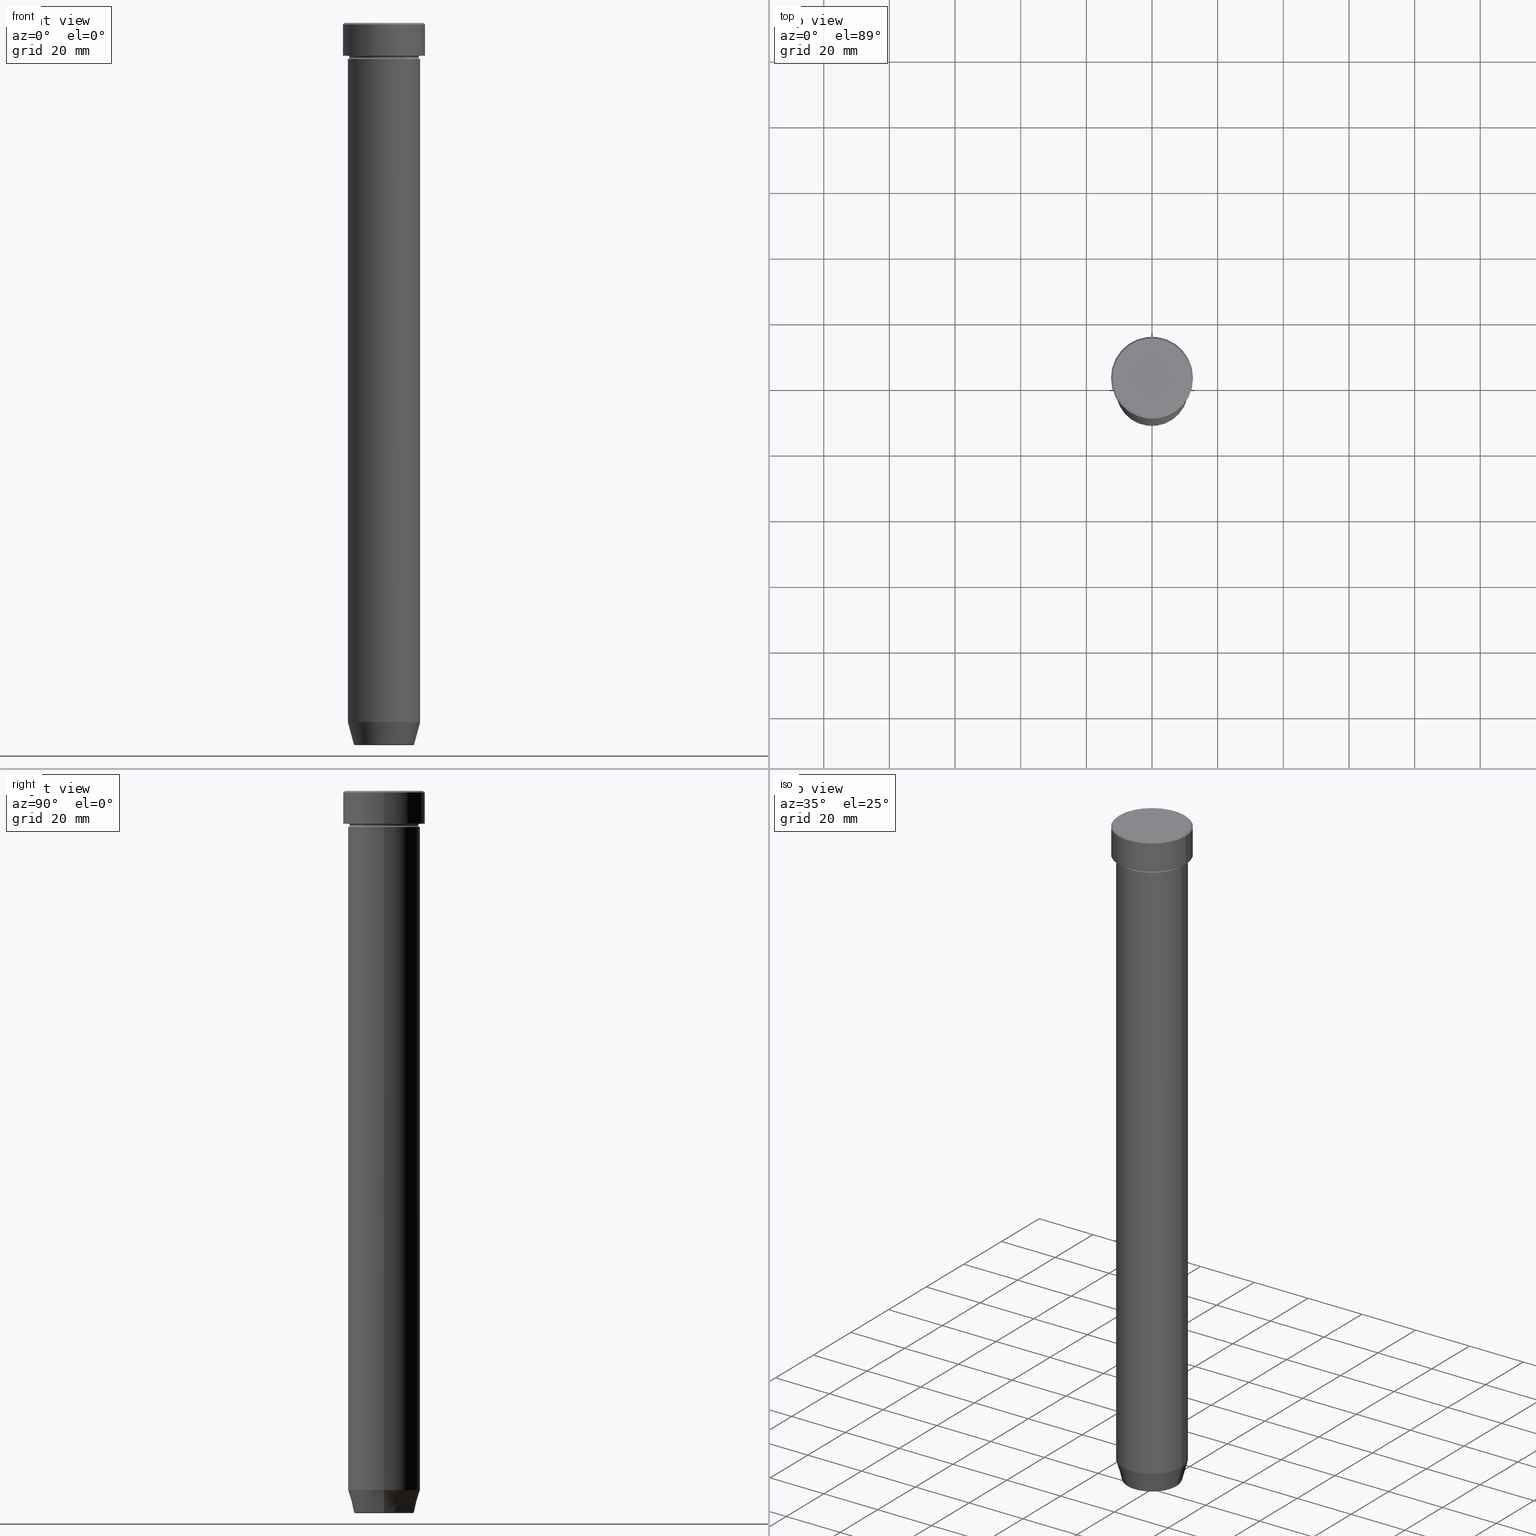
[diagram: canonical four-view strip — front | top / right | iso, engineering-drawing reading convention]
A machine part, canonical four-view strip (front | top / right | iso — engineering-drawing reading convention). The complete STEP part file that produces these views, byte-faithful:
ISO-10303-21;
HEADER;
FILE_DESCRIPTION (( 'STEP AP203' ),
    '1' );
FILE_NAME ('6da3.STEP',
    '2024-01-02T19:22:35',
    ( '' ),
    ( '' ),
    'SwSTEP 2.0',
    'SolidWorks 2019',
    '' );
FILE_SCHEMA (( 'CONFIG_CONTROL_DESIGN' ));
ENDSEC;

DATA;
#1 = CARTESIAN_POINT ( 'NONE',  ( -11.00000000000000000, 1.347111479062088405E-15, -10.49999999999999822 ) ) ;
#2 = SECURITY_CLASSIFICATION_LEVEL ( 'unclassified' ) ;
#3 = AXIS2_PLACEMENT_3D ( 'NONE', #478, #245, #189 ) ;
#4 = EDGE_CURVE ( 'NONE', #578, #142, #379, .T. ) ;
#5 = AXIS2_PLACEMENT_3D ( 'NONE', #418, #280, #504 ) ;
#6 = AXIS2_PLACEMENT_3D ( 'NONE', #106, #60, #186 ) ;
#7 = ORIENTED_EDGE ( 'NONE', *, *, #598, .F. ) ;
#8 = CARTESIAN_POINT ( 'NONE',  ( 0.000000000000000000, 0.000000000000000000, -11.00000000000000000 ) ) ;
#9 = EDGE_LOOP ( 'NONE', ( #497, #357 ) ) ;
#10 = FACE_OUTER_BOUND ( 'NONE', #376, .T. ) ;
#11 = VECTOR ( 'NONE', #35, 1000.000000000000000 ) ;
#12 = DIRECTION ( 'NONE',  ( 0.000000000000000000, 0.000000000000000000, -1.000000000000000000 ) ) ;
#13 = FACE_OUTER_BOUND ( 'NONE', #444, .T. ) ;
#14 = CARTESIAN_POINT ( 'NONE',  ( 0.000000000000000000, 0.000000000000000000, -10.50000000000000000 ) ) ;
#15 = DIRECTION ( 'NONE',  ( 1.000000000000000000, 0.000000000000000000, 0.000000000000000000 ) ) ;
#16 = VERTEX_POINT ( 'NONE', #528 ) ;
#17 = AXIS2_PLACEMENT_3D ( 'NONE', #14, #235, #530 ) ;
#18 = CARTESIAN_POINT ( 'NONE',  ( 0.000000000000000000, 0.000000000000000000, -10.49999999999999822 ) ) ;
#19 = DIRECTION ( 'NONE',  ( 1.000000000000000000, 0.000000000000000000, 0.000000000000000000 ) ) ;
#20 = ORIENTED_EDGE ( 'NONE', *, *, #591, .F. ) ;
#21 = FACE_OUTER_BOUND ( 'NONE', #268, .T. ) ;
#22 = DIRECTION ( 'NONE',  ( -0.000000000000000000, -0.000000000000000000, 1.000000000000000000 ) ) ;
#23 = ORIENTED_EDGE ( 'NONE', *, *, #385, .T. ) ;
#24 = CC_DESIGN_DATE_AND_TIME_ASSIGNMENT ( #455, #123, ( #493 ) ) ;
#25 = FACE_OUTER_BOUND ( 'NONE', #492, .T. ) ;
#26 = CARTESIAN_POINT ( 'NONE',  ( 12.00000000000000355, 1.469576158976824342E-15, 0.000000000000000000 ) ) ;
#27 = DIRECTION ( 'NONE',  ( 0.000000000000000000, 0.000000000000000000, -1.000000000000000000 ) ) ;
#28 = VERTEX_POINT ( 'NONE', #121 ) ;
#29 = AXIS2_PLACEMENT_3D ( 'NONE', #382, #146, #110 ) ;
#30 = CIRCLE ( 'NONE', #362, 12.50000000000000000 ) ;
#31 = CARTESIAN_POINT ( 'NONE',  ( -8.740692158992656502, 1.099999016768739653E-15, -220.0000000000000284 ) ) ;
#32 = CARTESIAN_POINT ( 'NONE',  ( 12.50000000000000000, 0.000000000000000000, 0.000000000000000000 ) ) ;
#33 = DIRECTION ( 'NONE',  ( 0.7071067811865462405, 8.659560562354918067E-17, -0.7071067811865489050 ) ) ;
#34 = CALENDAR_DATE ( 2024, 2, 1 ) ;
#35 = DIRECTION ( 'NONE',  ( 0.2588190451025213501, 0.000000000000000000, 0.9659258262890680902 ) ) ;
#36 = PRODUCT ( '6da3', '6da3', '', ( #255 ) ) ;
#37 = EDGE_LOOP ( 'NONE', ( #20, #132, #512, #43 ) ) ;
#38 = DIRECTION ( 'NONE',  ( -1.000000000000000000, 0.000000000000000000, 0.000000000000000000 ) ) ;
#39 = EDGE_LOOP ( 'NONE', ( #366, #396 ) ) ;
#40 = APPROVAL_DATE_TIME ( #489, #550 ) ;
#41 = EDGE_CURVE ( 'NONE', #256, #297, #483, .T. ) ;
#42 = VERTEX_POINT ( 'NONE', #31 ) ;
#43 = ORIENTED_EDGE ( 'NONE', *, *, #521, .F. ) ;
#44 = AXIS2_PLACEMENT_3D ( 'NONE', #116, #111, #399 ) ;
#45 = DIRECTION ( 'NONE',  ( 1.000000000000000000, 0.000000000000000000, 0.000000000000000000 ) ) ;
#46 = DIRECTION ( 'NONE',  ( -1.000000000000000000, 0.000000000000000000, 0.000000000000000000 ) ) ;
#47 = VERTEX_POINT ( 'NONE', #351 ) ;
#48 = DIRECTION ( 'NONE',  ( 1.000000000000000000, 0.000000000000000000, 0.000000000000000000 ) ) ;
#49 = COORDINATED_UNIVERSAL_TIME_OFFSET ( 1, 0, .AHEAD. ) ;
#50 = AXIS2_PLACEMENT_3D ( 'NONE', #429, #145, #109 ) ;
#51 = VERTEX_POINT ( 'NONE', #210 ) ;
#52 = DIRECTION ( 'NONE',  ( -0.000000000000000000, -0.000000000000000000, 1.000000000000000000 ) ) ;
#53 = VECTOR ( 'NONE', #369, 1000.000000000000000 ) ;
#54 = LOCAL_TIME ( 20, 22, 35.00000000000000000, #405 ) ;
#55 = EDGE_LOOP ( 'NONE', ( #337, #148, #556, #453 ) ) ;
#56 = EDGE_CURVE ( 'NONE', #256, #471, #352, .T. ) ;
#57 = DIRECTION ( 'NONE',  ( 1.000000000000000000, 0.000000000000000000, 0.000000000000000000 ) ) ;
#58 = EDGE_CURVE ( 'NONE', #304, #256, #112, .T. ) ;
#59 = DIRECTION ( 'NONE',  ( 1.000000000000000000, 0.000000000000000000, 0.000000000000000000 ) ) ;
#60 = DIRECTION ( 'NONE',  ( -0.000000000000000000, -0.000000000000000000, 1.000000000000000000 ) ) ;
#61 = ADVANCED_FACE ( 'NONE', ( #395 ), #177, .T. ) ;
#62 = EDGE_LOOP ( 'NONE', ( #216, #229, #184, #221 ) ) ;
#63 = CARTESIAN_POINT ( 'NONE',  ( -12.00000000000000355, 0.000000000000000000, 0.000000000000000000 ) ) ;
#64 = DIRECTION ( 'NONE',  ( -0.000000000000000000, -0.000000000000000000, 1.000000000000000000 ) ) ;
#65 = AXIS2_PLACEMENT_3D ( 'NONE', #1, #275, #135 ) ;
#66 = CARTESIAN_POINT ( 'NONE',  ( 0.000000000000000000, 0.000000000000000000, -10.00000000000000000 ) ) ;
#67 = DIRECTION ( 'NONE',  ( 1.224646799147353207E-16, 1.000000000000000000, 0.000000000000000000 ) ) ;
#68 = AXIS2_PLACEMENT_3D ( 'NONE', #386, #389, #568 ) ;
#69 = PLANE ( 'NONE',  #312 ) ;
#70 = VERTEX_POINT ( 'NONE', #155 ) ;
#71 = LINE ( 'NONE', #470, #597 ) ;
#72 = CARTESIAN_POINT ( 'NONE',  ( 0.000000000000000000, 0.000000000000000000, -219.6294095225512706 ) ) ;
#73 = DIRECTION ( 'NONE',  ( -0.7071067811865462405, 0.000000000000000000, -0.7071067811865489050 ) ) ;
#74 = VERTEX_POINT ( 'NONE', #387 ) ;
#75 = CARTESIAN_POINT ( 'NONE',  ( 0.000000000000000000, 0.000000000000000000, -219.5000000000000284 ) ) ;
#76 = FACE_OUTER_BOUND ( 'NONE', #287, .T. ) ;
#77 = CARTESIAN_POINT ( 'NONE',  ( -8.740692158992656502, 1.070426067484272519E-15, -219.5000000000000284 ) ) ;
#78 = CIRCLE ( 'NONE', #137, 12.00000000000000355 ) ;
#79 = CIRCLE ( 'NONE', #452, 9.223655072137189492 ) ;
#80 =( NAMED_UNIT ( * ) SI_UNIT ( $, .STERADIAN. ) SOLID_ANGLE_UNIT ( ) );
#81 = DIRECTION ( 'NONE',  ( 0.000000000000000000, 0.000000000000000000, -1.000000000000000000 ) ) ;
#82 = ORIENTED_EDGE ( 'NONE', *, *, #4, .F. ) ;
#83 = CIRCLE ( 'NONE', #425, 11.00000000000000000 ) ;
#84 = CIRCLE ( 'NONE', #342, 10.49999999999999822 ) ;
#85 = CC_DESIGN_APPROVAL ( #300, ( #355 ) ) ;
#86 = VERTEX_POINT ( 'NONE', #516 ) ;
#87 = ORIENTED_EDGE ( 'NONE', *, *, #202, .T. ) ;
#88 = ORIENTED_EDGE ( 'NONE', *, *, #561, .T. ) ;
#89 = DIRECTION ( 'NONE',  ( -0.000000000000000000, -0.000000000000000000, 1.000000000000000000 ) ) ;
#90 = DIRECTION ( 'NONE',  ( 0.000000000000000000, 0.000000000000000000, -1.000000000000000000 ) ) ;
#91 = PERSON_AND_ORGANIZATION ( #215, #576 ) ;
#92 = AXIS2_PLACEMENT_3D ( 'NONE', #583, #167, #435 ) ;
#93 = APPLICATION_PROTOCOL_DEFINITION ( 'international standard', 'config_control_design', 1994, #173 ) ;
#94 = AXIS2_PLACEMENT_3D ( 'NONE', #563, #394, #147 ) ;
#95 = LOCAL_TIME ( 20, 22, 35.00000000000000000, #307 ) ;
#96 = DIRECTION ( 'NONE',  ( 1.000000000000000000, 0.000000000000000000, 0.000000000000000000 ) ) ;
#97 = DIRECTION ( 'NONE',  ( -1.000000000000000000, -1.224646799147353454E-16, 0.000000000000000000 ) ) ;
#98 = EDGE_CURVE ( 'NONE', #42, #304, #368, .T. ) ;
#99 = ORIENTED_EDGE ( 'NONE', *, *, #407, .T. ) ;
#100 = CARTESIAN_POINT ( 'NONE',  ( 0.000000000000000000, 0.000000000000000000, -10.00000000000000000 ) ) ;
#101 = TOROIDAL_SURFACE ( 'NONE', #214, 11.00000000000000000, 0.5000000000000000000 ) ;
#102 = CARTESIAN_POINT ( 'NONE',  ( 0.000000000000000000, 0.000000000000000000, 0.000000000000000000 ) ) ;
#103 = DIRECTION ( 'NONE',  ( -1.000000000000000000, 0.000000000000000000, -0.000000000000000000 ) ) ;
#104 = DATE_AND_TIME ( #427, #228 ) ;
#105 = ADVANCED_FACE ( 'NONE', ( #559 ), #482, .T. ) ;
#106 = CARTESIAN_POINT ( 'NONE',  ( 0.000000000000000000, 0.000000000000000000, -10.49999999999999822 ) ) ;
#107 = DIRECTION ( 'NONE',  ( -0.000000000000000000, -0.000000000000000000, 1.000000000000000000 ) ) ;
#108 = ORIENTED_EDGE ( 'NONE', *, *, #409, .T. ) ;
#109 = DIRECTION ( 'NONE',  ( 0.000000000000000000, 0.000000000000000000, -1.000000000000000000 ) ) ;
#110 = DIRECTION ( 'NONE',  ( 1.000000000000000000, 0.000000000000000000, 0.000000000000000000 ) ) ;
#111 = DIRECTION ( 'NONE',  ( -0.000000000000000000, -0.000000000000000000, 1.000000000000000000 ) ) ;
#112 = CIRCLE ( 'NONE', #3, 0.5000000000000004441 ) ;
#113 = DIRECTION ( 'NONE',  ( -0.000000000000000000, -0.000000000000000000, 1.000000000000000000 ) ) ;
#114 = DIRECTION ( 'NONE',  ( -1.224646799147353207E-16, 1.000000000000000000, 0.000000000000000000 ) ) ;
#115 = APPROVAL_PERSON_ORGANIZATION ( #499, #170, #340 ) ;
#116 = CARTESIAN_POINT ( 'NONE',  ( 0.000000000000000000, 0.000000000000000000, 0.000000000000000000 ) ) ;
#117 = LINE ( 'NONE', #26, #140 ) ;
#118 = ORIENTED_EDGE ( 'NONE', *, *, #291, .T. ) ;
#119 = CARTESIAN_POINT ( 'NONE',  ( -11.00000000000000000, 1.347111479062088405E-15, -213.0000000000000284 ) ) ;
#120 = CARTESIAN_POINT ( 'NONE',  ( 0.000000000000000000, 0.000000000000000000, -213.0000000000000284 ) ) ;
#121 = CARTESIAN_POINT ( 'NONE',  ( 11.00000000000000000, 0.000000000000000000, -27.00000000000000000 ) ) ;
#122 = VECTOR ( 'NONE', #336, 1000.000000000000000 ) ;
#123 = DATE_TIME_ROLE ( 'creation_date' ) ;
#124 = EDGE_LOOP ( 'NONE', ( #551, #23, #539, #138 ) ) ;
#125 = CARTESIAN_POINT ( 'NONE',  ( 0.000000000000000000, 0.000000000000000000, 0.000000000000000000 ) ) ;
#126 = DIRECTION ( 'NONE',  ( -1.000000000000000000, 0.000000000000000000, -0.000000000000000000 ) ) ;
#127 = ORIENTED_EDGE ( 'NONE', *, *, #309, .F. ) ;
#128 = CARTESIAN_POINT ( 'NONE',  ( 0.000000000000000000, 0.000000000000000000, -27.00000000000000000 ) ) ;
#129 = CONICAL_SURFACE ( 'NONE', #166, 9.124355652982133691, 0.2617993877991500740 ) ;
#130 = DIRECTION ( 'NONE',  ( -0.000000000000000000, -0.000000000000000000, 1.000000000000000000 ) ) ;
#131 = APPROVAL_STATUS ( 'not_yet_approved' ) ;
#132 = ORIENTED_EDGE ( 'NONE', *, *, #536, .T. ) ;
#133 = DIRECTION ( 'NONE',  ( 0.000000000000000000, 0.000000000000000000, 1.000000000000000000 ) ) ;
#134 = EDGE_LOOP ( 'NONE', ( #454, #87, #515, #503 ) ) ;
#135 = DIRECTION ( 'NONE',  ( -1.000000000000000000, 1.224646799147353454E-16, 0.000000000000000000 ) ) ;
#136 = DATE_AND_TIME ( #370, #426 ) ;
#137 = AXIS2_PLACEMENT_3D ( 'NONE', #102, #288, #96 ) ;
#138 = ORIENTED_EDGE ( 'NONE', *, *, #139, .F. ) ;
#139 = EDGE_CURVE ( 'NONE', #507, #284, #431, .T. ) ;
#140 = VECTOR ( 'NONE', #33, 999.9999999999998863 ) ;
#141 = LINE ( 'NONE', #299, #122 ) ;
#142 = VERTEX_POINT ( 'NONE', #289 ) ;
#143 = CYLINDRICAL_SURFACE ( 'NONE', #464, 11.00000000000000000 ) ;
#144 = DIRECTION ( 'NONE',  ( 1.000000000000000000, 0.000000000000000000, 0.000000000000000000 ) ) ;
#145 = DIRECTION ( 'NONE',  ( 0.000000000000000000, -1.000000000000000000, 0.000000000000000000 ) ) ;
#146 = DIRECTION ( 'NONE',  ( -0.000000000000000000, -0.000000000000000000, 1.000000000000000000 ) ) ;
#147 = DIRECTION ( 'NONE',  ( -1.000000000000000000, 0.000000000000000000, 0.000000000000000000 ) ) ;
#148 = ORIENTED_EDGE ( 'NONE', *, *, #536, .F. ) ;
#149 = CARTESIAN_POINT ( 'NONE',  ( 11.00000000000000000, 0.000000000000000000, -27.00000000000000000 ) ) ;
#150 = LINE ( 'NONE', #481, #524 ) ;
#151 = ORIENTED_EDGE ( 'NONE', *, *, #163, .F. ) ;
#152 = CARTESIAN_POINT ( 'NONE',  ( -10.49999999999999822, 1.316495309083404420E-15, -10.49999999999999822 ) ) ;
#153 = CARTESIAN_POINT ( 'NONE',  ( 11.00000000000000000, 0.000000000000000000, -213.0000000000000284 ) ) ;
#154 = AXIS2_PLACEMENT_3D ( 'NONE', #77, #67, #199 ) ;
#155 = CARTESIAN_POINT ( 'NONE',  ( -11.00000000000000000, 1.347111479062088405E-15, -27.00000000000000000 ) ) ;
#156 = SECURITY_CLASSIFICATION ( '', '', #2 ) ;
#157 = ADVANCED_FACE ( 'NONE', ( #461 ), #161, .T. ) ;
#158 = FACE_OUTER_BOUND ( 'NONE', #62, .T. ) ;
#159 = ORIENTED_EDGE ( 'NONE', *, *, #417, .F. ) ;
#160 = APPROVAL_DATE_TIME ( #259, #300 ) ;
#161 = TOROIDAL_SURFACE ( 'NONE', #234, 8.740692158992656502, 0.5000000000000000000 ) ;
#162 = FACE_OUTER_BOUND ( 'NONE', #372, .T. ) ;
#163 = EDGE_CURVE ( 'NONE', #284, #416, #212, .T. ) ;
#164 = ADVANCED_FACE ( 'NONE', ( #181, #377 ), #232, .T. ) ;
#165 = VERTEX_POINT ( 'NONE', #119 ) ;
#166 = AXIS2_PLACEMENT_3D ( 'NONE', #573, #286, #19 ) ;
#167 = DIRECTION ( 'NONE',  ( -0.000000000000000000, -0.000000000000000000, 1.000000000000000000 ) ) ;
#168 = ORIENTED_EDGE ( 'NONE', *, *, #356, .T. ) ;
#169 = DIRECTION ( 'NONE',  ( -0.000000000000000000, -0.000000000000000000, 1.000000000000000000 ) ) ;
#170 = APPROVAL ( #599, 'NEUR�EN�' ) ;
#171 = ADVANCED_BREP_SHAPE_REPRESENTATION ( '6da3', ( #397, #393, #541 ), #332 ) ;
#172 = PERSON_AND_ORGANIZATION_ROLE ( 'classification_officer' ) ;
#173 = APPLICATION_CONTEXT ( 'configuration controlled 3d designs of mechanical parts and assemblies' ) ;
#174 = CC_DESIGN_PERSON_AND_ORGANIZATION_ASSIGNMENT ( #414, #419, ( #355 ) ) ;
#175 = CARTESIAN_POINT ( 'NONE',  ( 0.000000000000000000, 0.000000000000000000, -10.49999999999999822 ) ) ;
#176 = PERSON_AND_ORGANIZATION ( #215, #576 ) ;
#177 = CONICAL_SURFACE ( 'NONE', #233, 12.00000000000000355, 0.7853981633974465026 ) ;
#178 = ADVANCED_FACE ( 'NONE', ( #10 ), #473, .T. ) ;
#179 = AXIS2_PLACEMENT_3D ( 'NONE', #346, #107, #15 ) ;
#180 = TOROIDAL_SURFACE ( 'NONE', #263, 8.740692158992656502, 0.5000000000000000000 ) ;
#181 = FACE_BOUND ( 'NONE', #9, .T. ) ;
#182 = DIRECTION ( 'NONE',  ( 1.000000000000000000, 0.000000000000000000, 0.000000000000000000 ) ) ;
#183 = SHAPE_DEFINITION_REPRESENTATION ( #264, #171 ) ;
#184 = ORIENTED_EDGE ( 'NONE', *, *, #58, .T. ) ;
#185 = CONICAL_SURFACE ( 'NONE', #595, 12.00000000000000355, 0.7853981633974465026 ) ;
#186 = DIRECTION ( 'NONE',  ( 1.000000000000000000, 0.000000000000000000, 0.000000000000000000 ) ) ;
#187 = AXIS2_PLACEMENT_3D ( 'NONE', #519, #114, #97 ) ;
#188 = VERTEX_POINT ( 'NONE', #63 ) ;
#189 = DIRECTION ( 'NONE',  ( 0.000000000000000000, 0.000000000000000000, -1.000000000000000000 ) ) ;
#190 = DIRECTION ( 'NONE',  ( -0.000000000000000000, -0.000000000000000000, 1.000000000000000000 ) ) ;
#191 = EDGE_CURVE ( 'NONE', #16, #416, #236, .T. ) ;
#192 = DIRECTION ( 'NONE',  ( 1.000000000000000000, 0.000000000000000000, 0.000000000000000000 ) ) ;
#193 = CARTESIAN_POINT ( 'NONE',  ( 0.000000000000000000, 2.081899558550500990E-14, -220.0000000000000284 ) ) ;
#194 = ORIENTED_EDGE ( 'NONE', *, *, #500, .F. ) ;
#195 = CARTESIAN_POINT ( 'NONE',  ( 0.000000000000000000, 0.000000000000000000, -10.50000000000000000 ) ) ;
#196 = DIRECTION ( 'NONE',  ( -0.000000000000000000, -0.000000000000000000, 1.000000000000000000 ) ) ;
#197 = CARTESIAN_POINT ( 'NONE',  ( -12.50000000000000000, 1.530808498934191521E-15, -0.4999999999999988343 ) ) ;
#198 = ADVANCED_FACE ( 'NONE', ( #257 ), #302, .T. ) ;
#199 = DIRECTION ( 'NONE',  ( -1.000000000000000000, 1.224646799147353454E-16, 0.000000000000000000 ) ) ;
#200 = ORIENTED_EDGE ( 'NONE', *, *, #409, .F. ) ;
#201 = DIRECTION ( 'NONE',  ( -0.000000000000000000, -0.000000000000000000, 1.000000000000000000 ) ) ;
#202 = EDGE_CURVE ( 'NONE', #42, #471, #398, .T. ) ;
#203 = AXIS2_PLACEMENT_3D ( 'NONE', #341, #201, #238 ) ;
#204 = ORIENTED_EDGE ( 'NONE', *, *, #334, .F. ) ;
#205 = DIRECTION ( 'NONE',  ( 1.000000000000000000, 0.000000000000000000, 0.000000000000000000 ) ) ;
#206 = DIRECTION ( 'NONE',  ( -0.000000000000000000, -0.000000000000000000, 1.000000000000000000 ) ) ;
#207 = DIRECTION ( 'NONE',  ( 1.000000000000000000, 0.000000000000000000, 0.000000000000000000 ) ) ;
#208 = EDGE_LOOP ( 'NONE', ( #544, #219, #247, #596 ) ) ;
#209 =( NAMED_UNIT ( * ) PLANE_ANGLE_UNIT ( ) SI_UNIT ( $, .RADIAN. ) );
#210 = CARTESIAN_POINT ( 'NONE',  ( 12.00000000000000355, 1.500192328955507734E-15, 0.000000000000000000 ) ) ;
#211 = PRODUCT_RELATED_PRODUCT_CATEGORY ( 'detail', '', ( #36 ) ) ;
#212 = CIRCLE ( 'NONE', #411, 11.00000000000000000 ) ;
#213 = ORIENTED_EDGE ( 'NONE', *, *, #591, .T. ) ;
#214 = AXIS2_PLACEMENT_3D ( 'NONE', #195, #316, #38 ) ;
#215 = PERSON ( 'NEUR�EN�', 'NEUR�EN�', 'NEUR�EN�', ('NEUR�EN�'), ('NEUR�EN�'), ('NEUR�EN�') ) ;
#216 = ORIENTED_EDGE ( 'NONE', *, *, #202, .F. ) ;
#217 = ADVANCED_FACE ( 'NONE', ( #21 ), #252, .T. ) ;
#218 = CALENDAR_DATE ( 2024, 2, 1 ) ;
#219 = ORIENTED_EDGE ( 'NONE', *, *, #500, .T. ) ;
#220 = COORDINATED_UNIVERSAL_TIME_OFFSET ( 1, 0, .AHEAD. ) ;
#221 = ORIENTED_EDGE ( 'NONE', *, *, #545, .F. ) ;
#222 = APPROVAL_ROLE ( '' ) ;
#223 = EDGE_CURVE ( 'NONE', #513, #86, #501, .T. ) ;
#224 = ORIENTED_EDGE ( 'NONE', *, *, #353, .T. ) ;
#225 = PERSON_AND_ORGANIZATION_ROLE ( 'creator' ) ;
#226 = CIRCLE ( 'NONE', #374, 12.50000000000000000 ) ;
#227 = CC_DESIGN_PERSON_AND_ORGANIZATION_ASSIGNMENT ( #91, #225, ( #493 ) ) ;
#228 = LOCAL_TIME ( 20, 22, 35.00000000000000000, #388 ) ;
#229 = ORIENTED_EDGE ( 'NONE', *, *, #353, .F. ) ;
#230 = ORIENTED_EDGE ( 'NONE', *, *, #308, .T. ) ;
#231 = CARTESIAN_POINT ( 'NONE',  ( 0.000000000000000000, 0.000000000000000000, 0.000000000000000000 ) ) ;
#232 = PLANE ( 'NONE',  #487 ) ;
#233 = AXIS2_PLACEMENT_3D ( 'NONE', #380, #27, #574 ) ;
#234 = AXIS2_PLACEMENT_3D ( 'NONE', #274, #52, #468 ) ;
#235 = DIRECTION ( 'NONE',  ( 0.000000000000000000, 0.000000000000000000, -1.000000000000000000 ) ) ;
#236 = LINE ( 'NONE', #518, #303 ) ;
#237 = AXIS2_PLACEMENT_3D ( 'NONE', #100, #466, #46 ) ;
#238 = DIRECTION ( 'NONE',  ( 1.000000000000000000, 0.000000000000000000, 0.000000000000000000 ) ) ;
#239 = APPROVAL_PERSON_ORGANIZATION ( #581, #550, #222 ) ;
#240 = ORIENTED_EDGE ( 'NONE', *, *, #291, .F. ) ;
#241 = EDGE_LOOP ( 'NONE', ( #582, #118 ) ) ;
#242 = ADVANCED_FACE ( 'NONE', ( #490 ), #101, .F. ) ;
#243 = LINE ( 'NONE', #32, #525 ) ;
#244 = PLANE ( 'NONE',  #585 ) ;
#245 = DIRECTION ( 'NONE',  ( 0.000000000000000000, -1.000000000000000000, 0.000000000000000000 ) ) ;
#246 = DIRECTION ( 'NONE',  ( 0.000000000000000000, 0.000000000000000000, -1.000000000000000000 ) ) ;
#247 = ORIENTED_EDGE ( 'NONE', *, *, #309, .T. ) ;
#248 = LINE ( 'NONE', #443, #540 ) ;
#249 = DIRECTION ( 'NONE',  ( -0.000000000000000000, -0.000000000000000000, 1.000000000000000000 ) ) ;
#250 = DIRECTION ( 'NONE',  ( 1.000000000000000000, 0.000000000000000000, 0.000000000000000000 ) ) ;
#251 = EDGE_LOOP ( 'NONE', ( #459, #402, #320, #194 ) ) ;
#252 = CONICAL_SURFACE ( 'NONE', #558, 9.124355652982133691, 0.2617993877991500740 ) ;
#253 = EDGE_CURVE ( 'NONE', #47, #74, #226, .T. ) ;
#254 = EDGE_CURVE ( 'NONE', #16, #587, #549, .T. ) ;
#255 = MECHANICAL_CONTEXT ( 'NONE', #173, 'mechanical' ) ;
#256 = VERTEX_POINT ( 'NONE', #557 ) ;
#257 = FACE_OUTER_BOUND ( 'NONE', #327, .T. ) ;
#258 = CARTESIAN_POINT ( 'NONE',  ( 9.124355652982133691, 0.000000000000000000, -220.0000000000000284 ) ) ;
#259 = DATE_AND_TIME ( #218, #95 ) ;
#260 = EDGE_CURVE ( 'NONE', #188, #51, #78, .T. ) ;
#261 = CIRCLE ( 'NONE', #5, 11.00000000000000000 ) ;
#262 = APPLICATION_CONTEXT ( 'configuration controlled 3d designs of mechanical parts and assemblies' ) ;
#263 = AXIS2_PLACEMENT_3D ( 'NONE', #75, #447, #474 ) ;
#264 = PRODUCT_DEFINITION_SHAPE ( 'NONE', 'NONE',  #493 ) ;
#265 = DIRECTION ( 'NONE',  ( 1.000000000000000000, 0.000000000000000000, 0.000000000000000000 ) ) ;
#266 = EDGE_LOOP ( 'NONE', ( #542, #213, #204, #82 ) ) ;
#267 = ADVANCED_FACE ( 'NONE', ( #552 ), #143, .T. ) ;
#268 = EDGE_LOOP ( 'NONE', ( #590, #360, #296, #554 ) ) ;
#269 = ADVANCED_FACE ( 'NONE', ( #438 ), #129, .T. ) ;
#270 = TOROIDAL_SURFACE ( 'NONE', #17, 11.00000000000000000, 0.5000000000000000000 ) ;
#271 = CIRCLE ( 'NONE', #187, 0.5000000000000004441 ) ;
#272 = APPLICATION_PROTOCOL_DEFINITION ( 'international standard', 'config_control_design', 1994, #262 ) ;
#273 = CARTESIAN_POINT ( 'NONE',  ( 0.000000000000000000, 0.000000000000000000, 0.000000000000000000 ) ) ;
#274 = CARTESIAN_POINT ( 'NONE',  ( 0.000000000000000000, 0.000000000000000000, -219.5000000000000284 ) ) ;
#275 = DIRECTION ( 'NONE',  ( 1.224646799147353207E-16, 1.000000000000000000, 0.000000000000000000 ) ) ;
#276 = ADVANCED_FACE ( 'NONE', ( #76 ), #244, .F. ) ;
#277 = DIRECTION ( 'NONE',  ( -1.000000000000000000, 0.000000000000000000, 0.000000000000000000 ) ) ;
#278 = ORIENTED_EDGE ( 'NONE', *, *, #223, .F. ) ;
#279 = CARTESIAN_POINT ( 'NONE',  ( 0.000000000000000000, 0.000000000000000000, -213.0000000000000284 ) ) ;
#280 = DIRECTION ( 'NONE',  ( -0.000000000000000000, -0.000000000000000000, 1.000000000000000000 ) ) ;
#281 = CIRCLE ( 'NONE', #203, 11.00000000000000000 ) ;
#282 = EDGE_LOOP ( 'NONE', ( #350, #448, #537, #509 ) ) ;
#283 = CARTESIAN_POINT ( 'NONE',  ( 11.00000000000000000, 1.347111479062088405E-15, -10.00000000000000000 ) ) ;
#284 = VERTEX_POINT ( 'NONE', #390 ) ;
#285 = CYLINDRICAL_SURFACE ( 'NONE', #412, 11.00000000000000000 ) ;
#286 = DIRECTION ( 'NONE',  ( -0.000000000000000000, -0.000000000000000000, 1.000000000000000000 ) ) ;
#287 = EDGE_LOOP ( 'NONE', ( #224, #479 ) ) ;
#288 = DIRECTION ( 'NONE',  ( -0.000000000000000000, -0.000000000000000000, 1.000000000000000000 ) ) ;
#289 = CARTESIAN_POINT ( 'NONE',  ( -11.00000000000000000, 0.000000000000000000, -10.00000000000000000 ) ) ;
#290 = EDGE_CURVE ( 'NONE', #51, #86, #117, .T. ) ;
#291 = EDGE_CURVE ( 'NONE', #51, #188, #456, .T. ) ;
#292 = EDGE_CURVE ( 'NONE', #587, #284, #141, .T. ) ;
#293 = FACE_OUTER_BOUND ( 'NONE', #564, .T. ) ;
#294 = AXIS2_PLACEMENT_3D ( 'NONE', #594, #365, #589 ) ;
#295 = DIRECTION ( 'NONE',  ( 1.000000000000000000, 0.000000000000000000, 0.000000000000000000 ) ) ;
#296 = ORIENTED_EDGE ( 'NONE', *, *, #329, .F. ) ;
#297 = VERTEX_POINT ( 'NONE', #153 ) ;
#298 = DIRECTION ( 'NONE',  ( -0.000000000000000000, -0.000000000000000000, 1.000000000000000000 ) ) ;
#299 = CARTESIAN_POINT ( 'NONE',  ( 11.00000000000000000, 0.000000000000000000, 0.000000000000000000 ) ) ;
#300 = APPROVAL ( #131, 'NEUR�EN�' ) ;
#301 = CARTESIAN_POINT ( 'NONE',  ( 0.000000000000000000, 0.000000000000000000, -10.49999999999999822 ) ) ;
#302 = PLANE ( 'NONE',  #534 ) ;
#303 = VECTOR ( 'NONE', #423, 1000.000000000000000 ) ;
#304 = VERTEX_POINT ( 'NONE', #511 ) ;
#305 = CIRCLE ( 'NONE', #383, 11.00000000000000000 ) ;
#306 = EDGE_CURVE ( 'NONE', #74, #47, #451, .T. ) ;
#307 = COORDINATED_UNIVERSAL_TIME_OFFSET ( 1, 0, .AHEAD. ) ;
#308 = EDGE_CURVE ( 'NONE', #188, #513, #150, .T. ) ;
#309 = EDGE_CURVE ( 'NONE', #297, #28, #248, .T. ) ;
#310 = VERTEX_POINT ( 'NONE', #283 ) ;
#311 = DIRECTION ( 'NONE',  ( 1.000000000000000000, 0.000000000000000000, 0.000000000000000000 ) ) ;
#312 = AXIS2_PLACEMENT_3D ( 'NONE', #392, #246, #477 ) ;
#313 = AXIS2_PLACEMENT_3D ( 'NONE', #301, #298, #480 ) ;
#314 = CC_DESIGN_DATE_AND_TIME_ASSIGNMENT ( #136, #543, ( #156 ) ) ;
#315 = ORIENTED_EDGE ( 'NONE', *, *, #538, .F. ) ;
#316 = DIRECTION ( 'NONE',  ( 0.000000000000000000, 0.000000000000000000, -1.000000000000000000 ) ) ;
#317 = ADVANCED_FACE ( 'NONE', ( #13 ), #523, .T. ) ;
#318 = CALENDAR_DATE ( 2024, 2, 1 ) ;
#319 = ADVANCED_FACE ( 'NONE', ( #293 ), #69, .F. ) ;
#320 = ORIENTED_EDGE ( 'NONE', *, *, #41, .T. ) ;
#321 =( LENGTH_UNIT ( ) NAMED_UNIT ( * ) SI_UNIT ( .MILLI., .METRE. ) );
#322 = DIRECTION ( 'NONE',  ( 0.000000000000000000, -0.000000000000000000, 1.000000000000000000 ) ) ;
#323 = AXIS2_PLACEMENT_3D ( 'NONE', #326, #90, #325 ) ;
#324 = CARTESIAN_POINT ( 'NONE',  ( 0.000000000000000000, 0.000000000000000000, 0.000000000000000000 ) ) ;
#325 = DIRECTION ( 'NONE',  ( 1.000000000000000000, 0.000000000000000000, 0.000000000000000000 ) ) ;
#326 = CARTESIAN_POINT ( 'NONE',  ( 0.000000000000000000, 0.000000000000000000, -220.0000000000000284 ) ) ;
#327 = EDGE_LOOP ( 'NONE', ( #200, #505 ) ) ;
#328 = CARTESIAN_POINT ( 'NONE',  ( -11.00000000000000000, 1.347111479062088405E-15, 0.000000000000000000 ) ) ;
#329 = EDGE_CURVE ( 'NONE', #297, #165, #445, .T. ) ;
#330 = DIRECTION ( 'NONE',  ( 0.000000000000000000, 0.000000000000000000, -1.000000000000000000 ) ) ;
#331 = PLANE ( 'NONE',  #408 ) ;
#332 =( GEOMETRIC_REPRESENTATION_CONTEXT ( 3 ) GLOBAL_UNCERTAINTY_ASSIGNED_CONTEXT ( ( #391 ) ) GLOBAL_UNIT_ASSIGNED_CONTEXT ( ( #321, #209, #80 ) ) REPRESENTATION_CONTEXT ( 'NONE', 'WORKASPACE' ) );
#333 = DIRECTION ( 'NONE',  ( -0.000000000000000000, -0.000000000000000000, 1.000000000000000000 ) ) ;
#334 = EDGE_CURVE ( 'NONE', #142, #310, #575, .T. ) ;
#335 = FACE_OUTER_BOUND ( 'NONE', #124, .T. ) ;
#336 = DIRECTION ( 'NONE',  ( -0.000000000000000000, -0.000000000000000000, 1.000000000000000000 ) ) ;
#337 = ORIENTED_EDGE ( 'NONE', *, *, #385, .F. ) ;
#338 = DIRECTION ( 'NONE',  ( -0.2588190451025213501, 3.169619151431772337E-17, 0.9659258262890680902 ) ) ;
#339 = ADVANCED_FACE ( 'NONE', ( #371 ), #331, .T. ) ;
#340 = APPROVAL_ROLE ( '' ) ;
#341 = CARTESIAN_POINT ( 'NONE',  ( 0.000000000000000000, 0.000000000000000000, -27.00000000000000000 ) ) ;
#342 = AXIS2_PLACEMENT_3D ( 'NONE', #175, #130, #462 ) ;
#343 = CIRCLE ( 'NONE', #65, 0.5000000000000004441 ) ;
#344 = CARTESIAN_POINT ( 'NONE',  ( -12.50000000000000000, 1.530808498934191521E-15, 0.000000000000000000 ) ) ;
#345 = LOCAL_TIME ( 20, 22, 35.00000000000000000, #49 ) ;
#346 = CARTESIAN_POINT ( 'NONE',  ( 0.000000000000000000, 0.000000000000000000, -10.00000000000000000 ) ) ;
#347 = DIRECTION ( 'NONE',  ( 1.000000000000000000, 0.000000000000000000, 0.000000000000000000 ) ) ;
#348 = CARTESIAN_POINT ( 'NONE',  ( 10.49999999999999822, 0.000000000000000000, -10.49999999999999822 ) ) ;
#349 = CARTESIAN_POINT ( 'NONE',  ( 0.000000000000000000, 0.000000000000000000, -220.0000000000000284 ) ) ;
#350 = ORIENTED_EDGE ( 'NONE', *, *, #191, .F. ) ;
#351 = CARTESIAN_POINT ( 'NONE',  ( -12.50000000000000000, 1.530808498934191521E-15, -10.00000000000000000 ) ) ;
#352 = CIRCLE ( 'NONE', #92, 9.223655072137189492 ) ;
#353 = EDGE_CURVE ( 'NONE', #304, #42, #475, .T. ) ;
#354 = CIRCLE ( 'NONE', #94, 11.00000000000000000 ) ;
#355 = PRODUCT_DEFINITION_FORMATION_WITH_SPECIFIED_SOURCE ( 'LIBOVOLN�', '', #36, .NOT_KNOWN. ) ;
#356 = EDGE_CURVE ( 'NONE', #70, #28, #261, .T. ) ;
#357 = ORIENTED_EDGE ( 'NONE', *, *, #521, .T. ) ;
#358 = CARTESIAN_POINT ( 'NONE',  ( -11.00000000000000000, 0.000000000000000000, -10.50000000000000000 ) ) ;
#359 = ORIENTED_EDGE ( 'NONE', *, *, #290, .F. ) ;
#360 = ORIENTED_EDGE ( 'NONE', *, *, #546, .T. ) ;
#361 = AXIS2_PLACEMENT_3D ( 'NONE', #128, #89, #311 ) ;
#362 = AXIS2_PLACEMENT_3D ( 'NONE', #502, #548, #367 ) ;
#363 = CARTESIAN_POINT ( 'NONE',  ( -11.00000000000000000, 1.347111479062088405E-15, -11.00000000000000000 ) ) ;
#364 = APPROVAL_ROLE ( '' ) ;
#365 = DIRECTION ( 'NONE',  ( 0.000000000000000000, 0.000000000000000000, -1.000000000000000000 ) ) ;
#366 = ORIENTED_EDGE ( 'NONE', *, *, #306, .F. ) ;
#367 = DIRECTION ( 'NONE',  ( 1.000000000000000000, 0.000000000000000000, 0.000000000000000000 ) ) ;
#368 = CIRCLE ( 'NONE', #450, 8.740692158992656502 ) ;
#369 = DIRECTION ( 'NONE',  ( -0.000000000000000000, -0.000000000000000000, 1.000000000000000000 ) ) ;
#370 = CALENDAR_DATE ( 2024, 2, 1 ) ;
#371 = FACE_OUTER_BOUND ( 'NONE', #241, .T. ) ;
#372 = EDGE_LOOP ( 'NONE', ( #240, #562, #278, #577 ) ) ;
#373 = CC_DESIGN_PERSON_AND_ORGANIZATION_ASSIGNMENT ( #176, #410, ( #355 ) ) ;
#374 = AXIS2_PLACEMENT_3D ( 'NONE', #66, #169, #498 ) ;
#375 = CC_DESIGN_SECURITY_CLASSIFICATION ( #156, ( #355 ) ) ;
#376 = EDGE_LOOP ( 'NONE', ( #485, #99, #159, #127 ) ) ;
#377 = FACE_OUTER_BOUND ( 'NONE', #39, .T. ) ;
#378 = CARTESIAN_POINT ( 'NONE',  ( 0.000000000000000000, 12.50000000000000000, -10.00000000000000000 ) ) ;
#379 = CIRCLE ( 'NONE', #532, 0.5000000000000004441 ) ;
#380 = CARTESIAN_POINT ( 'NONE',  ( 0.000000000000000000, 0.000000000000000000, 0.000000000000000000 ) ) ;
#381 = AXIS2_PLACEMENT_3D ( 'NONE', #231, #333, #59 ) ;
#382 = CARTESIAN_POINT ( 'NONE',  ( 0.000000000000000000, 0.000000000000000000, 0.000000000000000000 ) ) ;
#383 = AXIS2_PLACEMENT_3D ( 'NONE', #120, #22, #295 ) ;
#384 = APPROVAL_PERSON_ORGANIZATION ( #491, #300, #364 ) ;
#385 = EDGE_CURVE ( 'NONE', #578, #416, #343, .T. ) ;
#386 = CARTESIAN_POINT ( 'NONE',  ( 0.000000000000000000, 0.000000000000000000, -11.00000000000000000 ) ) ;
#387 = CARTESIAN_POINT ( 'NONE',  ( 12.50000000000000000, 0.000000000000000000, -10.00000000000000000 ) ) ;
#388 = COORDINATED_UNIVERSAL_TIME_OFFSET ( 1, 0, .AHEAD. ) ;
#389 = DIRECTION ( 'NONE',  ( -0.000000000000000000, -0.000000000000000000, 1.000000000000000000 ) ) ;
#390 = CARTESIAN_POINT ( 'NONE',  ( 11.00000000000000000, 0.000000000000000000, -11.00000000000000000 ) ) ;
#391 = UNCERTAINTY_MEASURE_WITH_UNIT (LENGTH_MEASURE( 1.000000000000000082E-05 ), #321, 'distance_accuracy_value', 'NONE');
#392 = CARTESIAN_POINT ( 'NONE',  ( 0.000000000000000000, 0.000000000000000000, -27.00000000000000000 ) ) ;
#393 = MANIFOLD_SOLID_BREP ( 'Zaoblit4', #555 ) ;
#394 = DIRECTION ( 'NONE',  ( -0.000000000000000000, -0.000000000000000000, 1.000000000000000000 ) ) ;
#395 = FACE_OUTER_BOUND ( 'NONE', #571, .T. ) ;
#396 = ORIENTED_EDGE ( 'NONE', *, *, #253, .F. ) ;
#397 = MANIFOLD_SOLID_BREP ( 'Zkosen�1', #404 ) ;
#398 = CIRCLE ( 'NONE', #154, 0.5000000000000004441 ) ;
#399 = DIRECTION ( 'NONE',  ( 1.000000000000000000, 0.000000000000000000, 0.000000000000000000 ) ) ;
#400 = EDGE_LOOP ( 'NONE', ( #108, #486, #151, #495 ) ) ;
#401 = FACE_OUTER_BOUND ( 'NONE', #55, .T. ) ;
#402 = ORIENTED_EDGE ( 'NONE', *, *, #545, .T. ) ;
#403 = EDGE_CURVE ( 'NONE', #578, #507, #84, .T. ) ;
#404 = CLOSED_SHELL ( 'NONE', ( #415, #242, #580, #105, #317, #198, #339, #449, #164, #430, #570, #517, #61 ) ) ;
#405 = COORDINATED_UNIVERSAL_TIME_OFFSET ( 1, 0, .AHEAD. ) ;
#406 = ORIENTED_EDGE ( 'NONE', *, *, #561, .F. ) ;
#407 = EDGE_CURVE ( 'NONE', #165, #70, #428, .T. ) ;
#408 = AXIS2_PLACEMENT_3D ( 'NONE', #273, #322, #422 ) ;
#409 = EDGE_CURVE ( 'NONE', #587, #16, #83, .T. ) ;
#410 = PERSON_AND_ORGANIZATION_ROLE ( 'design_supplier' ) ;
#411 = AXIS2_PLACEMENT_3D ( 'NONE', #8, #424, #182 ) ;
#412 = AXIS2_PLACEMENT_3D ( 'NONE', #437, #249, #439 ) ;
#413 = TOROIDAL_SURFACE ( 'NONE', #6, 11.00000000000000000, 0.5000000000000000000 ) ;
#414 = PERSON_AND_ORGANIZATION ( #215, #576 ) ;
#415 = ADVANCED_FACE ( 'NONE', ( #162 ), #185, .T. ) ;
#416 = VERTEX_POINT ( 'NONE', #363 ) ;
#417 = EDGE_CURVE ( 'NONE', #28, #70, #281, .T. ) ;
#418 = CARTESIAN_POINT ( 'NONE',  ( 0.000000000000000000, 0.000000000000000000, -27.00000000000000000 ) ) ;
#419 = PERSON_AND_ORGANIZATION_ROLE ( 'creator' ) ;
#420 = CC_DESIGN_PERSON_AND_ORGANIZATION_ASSIGNMENT ( #593, #172, ( #156 ) ) ;
#421 = AXIS2_PLACEMENT_3D ( 'NONE', #469, #113, #57 ) ;
#422 = DIRECTION ( 'NONE',  ( 1.000000000000000000, 0.000000000000000000, 0.000000000000000000 ) ) ;
#423 = DIRECTION ( 'NONE',  ( -0.000000000000000000, -0.000000000000000000, 1.000000000000000000 ) ) ;
#424 = DIRECTION ( 'NONE',  ( -0.000000000000000000, -0.000000000000000000, 1.000000000000000000 ) ) ;
#425 = AXIS2_PLACEMENT_3D ( 'NONE', #506, #547, #144 ) ;
#426 = LOCAL_TIME ( 20, 22, 35.00000000000000000, #220 ) ;
#427 = CALENDAR_DATE ( 2024, 2, 1 ) ;
#428 = LINE ( 'NONE', #328, #53 ) ;
#429 = CARTESIAN_POINT ( 'NONE',  ( 11.00000000000000000, 0.000000000000000000, -10.49999999999999822 ) ) ;
#430 = ADVANCED_FACE ( 'NONE', ( #510 ), #285, .T. ) ;
#431 = CIRCLE ( 'NONE', #50, 0.5000000000000004441 ) ;
#432 = ORIENTED_EDGE ( 'NONE', *, *, #417, .T. ) ;
#433 = CARTESIAN_POINT ( 'NONE',  ( -9.223655072137189492, 1.238341722557647202E-15, -219.6294095225512706 ) ) ;
#434 = DIRECTION ( 'NONE',  ( -0.000000000000000000, -0.000000000000000000, 1.000000000000000000 ) ) ;
#435 = DIRECTION ( 'NONE',  ( -1.000000000000000000, 0.000000000000000000, 0.000000000000000000 ) ) ;
#436 = CIRCLE ( 'NONE', #313, 10.49999999999999822 ) ;
#437 = CARTESIAN_POINT ( 'NONE',  ( 0.000000000000000000, 0.000000000000000000, 0.000000000000000000 ) ) ;
#438 = FACE_OUTER_BOUND ( 'NONE', #251, .T. ) ;
#439 = DIRECTION ( 'NONE',  ( 1.000000000000000000, 0.000000000000000000, 0.000000000000000000 ) ) ;
#440 = CARTESIAN_POINT ( 'NONE',  ( 0.000000000000000000, 0.000000000000000000, -220.0000000000000284 ) ) ;
#441 = ORIENTED_EDGE ( 'NONE', *, *, #253, .T. ) ;
#442 = LINE ( 'NONE', #344, #494 ) ;
#443 = CARTESIAN_POINT ( 'NONE',  ( 11.00000000000000000, 0.000000000000000000, 0.000000000000000000 ) ) ;
#444 = EDGE_LOOP ( 'NONE', ( #463, #567, #496, #406 ) ) ;
#445 = CIRCLE ( 'NONE', #488, 11.00000000000000000 ) ;
#446 = TOROIDAL_SURFACE ( 'NONE', #457, 11.00000000000000000, 0.5000000000000000000 ) ;
#447 = DIRECTION ( 'NONE',  ( -0.000000000000000000, -0.000000000000000000, 1.000000000000000000 ) ) ;
#448 = ORIENTED_EDGE ( 'NONE', *, *, #254, .T. ) ;
#449 = ADVANCED_FACE ( 'NONE', ( #25 ), #526, .T. ) ;
#450 = AXIS2_PLACEMENT_3D ( 'NONE', #349, #12, #347 ) ;
#451 = CIRCLE ( 'NONE', #179, 12.50000000000000000 ) ;
#452 = AXIS2_PLACEMENT_3D ( 'NONE', #72, #484, #579 ) ;
#453 = ORIENTED_EDGE ( 'NONE', *, *, #163, .T. ) ;
#454 = ORIENTED_EDGE ( 'NONE', *, *, #98, .F. ) ;
#455 = DATE_AND_TIME ( #318, #54 ) ;
#456 = CIRCLE ( 'NONE', #508, 12.00000000000000355 ) ;
#457 = AXIS2_PLACEMENT_3D ( 'NONE', #18, #64, #192 ) ;
#458 = APPROVAL_STATUS ( 'not_yet_approved' ) ;
#459 = ORIENTED_EDGE ( 'NONE', *, *, #546, .F. ) ;
#460 = CARTESIAN_POINT ( 'NONE',  ( 0.000000000000000000, 0.000000000000000000, 0.000000000000000000 ) ) ;
#461 = FACE_OUTER_BOUND ( 'NONE', #134, .T. ) ;
#462 = DIRECTION ( 'NONE',  ( 1.000000000000000000, 0.000000000000000000, 0.000000000000000000 ) ) ;
#463 = ORIENTED_EDGE ( 'NONE', *, *, #306, .T. ) ;
#464 = AXIS2_PLACEMENT_3D ( 'NONE', #460, #467, #48 ) ;
#465 = CC_DESIGN_APPROVAL ( #550, ( #493 ) ) ;
#466 = DIRECTION ( 'NONE',  ( -0.000000000000000000, -0.000000000000000000, 1.000000000000000000 ) ) ;
#467 = DIRECTION ( 'NONE',  ( -0.000000000000000000, -0.000000000000000000, 1.000000000000000000 ) ) ;
#468 = DIRECTION ( 'NONE',  ( 1.000000000000000000, 0.000000000000000000, 0.000000000000000000 ) ) ;
#469 = CARTESIAN_POINT ( 'NONE',  ( 0.000000000000000000, 0.000000000000000000, 0.000000000000000000 ) ) ;
#470 = CARTESIAN_POINT ( 'NONE',  ( -9.124355652982133691, 1.117411294470662806E-15, -220.0000000000000284 ) ) ;
#471 = VERTEX_POINT ( 'NONE', #433 ) ;
#472 = DIRECTION ( 'NONE',  ( -0.000000000000000000, -0.000000000000000000, 1.000000000000000000 ) ) ;
#473 = CYLINDRICAL_SURFACE ( 'NONE', #381, 11.00000000000000000 ) ;
#474 = DIRECTION ( 'NONE',  ( 1.000000000000000000, 0.000000000000000000, 0.000000000000000000 ) ) ;
#475 = CIRCLE ( 'NONE', #323, 8.740692158992656502 ) ;
#476 = CC_DESIGN_APPROVAL ( #170, ( #156 ) ) ;
#477 = DIRECTION ( 'NONE',  ( -1.000000000000000000, 0.000000000000000000, -0.000000000000000000 ) ) ;
#478 = CARTESIAN_POINT ( 'NONE',  ( 8.740692158992656502, 0.000000000000000000, -219.5000000000000284 ) ) ;
#479 = ORIENTED_EDGE ( 'NONE', *, *, #98, .T. ) ;
#480 = DIRECTION ( 'NONE',  ( 1.000000000000000000, 0.000000000000000000, 0.000000000000000000 ) ) ;
#481 = CARTESIAN_POINT ( 'NONE',  ( -12.00000000000000355, 0.000000000000000000, 0.000000000000000000 ) ) ;
#482 = CYLINDRICAL_SURFACE ( 'NONE', #421, 11.00000000000000000 ) ;
#483 = LINE ( 'NONE', #258, #11 ) ;
#484 = DIRECTION ( 'NONE',  ( -0.000000000000000000, -0.000000000000000000, 1.000000000000000000 ) ) ;
#485 = ORIENTED_EDGE ( 'NONE', *, *, #329, .T. ) ;
#486 = ORIENTED_EDGE ( 'NONE', *, *, #191, .T. ) ;
#487 = AXIS2_PLACEMENT_3D ( 'NONE', #378, #330, #103 ) ;
#488 = AXIS2_PLACEMENT_3D ( 'NONE', #279, #472, #265 ) ;
#489 = DATE_AND_TIME ( #34, #345 ) ;
#490 = FACE_OUTER_BOUND ( 'NONE', #266, .T. ) ;
#491 = PERSON_AND_ORGANIZATION ( #215, #576 ) ;
#492 = EDGE_LOOP ( 'NONE', ( #315, #441, #88, #531 ) ) ;
#493 = PRODUCT_DEFINITION ( 'NEZN�M�', '', #355, #565 ) ;
#494 = VECTOR ( 'NONE', #572, 1000.000000000000000 ) ;
#495 = ORIENTED_EDGE ( 'NONE', *, *, #292, .F. ) ;
#496 = ORIENTED_EDGE ( 'NONE', *, *, #223, .T. ) ;
#497 = ORIENTED_EDGE ( 'NONE', *, *, #334, .T. ) ;
#498 = DIRECTION ( 'NONE',  ( 1.000000000000000000, 0.000000000000000000, 0.000000000000000000 ) ) ;
#499 = PERSON_AND_ORGANIZATION ( #215, #576 ) ;
#500 = EDGE_CURVE ( 'NONE', #165, #297, #305, .T. ) ;
#501 = CIRCLE ( 'NONE', #294, 12.50000000000000000 ) ;
#502 = CARTESIAN_POINT ( 'NONE',  ( 0.000000000000000000, 0.000000000000000000, -0.4999999999999988343 ) ) ;
#503 = ORIENTED_EDGE ( 'NONE', *, *, #58, .F. ) ;
#504 = DIRECTION ( 'NONE',  ( 1.000000000000000000, 0.000000000000000000, 0.000000000000000000 ) ) ;
#505 = ORIENTED_EDGE ( 'NONE', *, *, #254, .F. ) ;
#506 = CARTESIAN_POINT ( 'NONE',  ( 0.000000000000000000, 0.000000000000000000, -27.00000000000000000 ) ) ;
#507 = VERTEX_POINT ( 'NONE', #348 ) ;
#508 = AXIS2_PLACEMENT_3D ( 'NONE', #569, #434, #207 ) ;
#509 = ORIENTED_EDGE ( 'NONE', *, *, #586, .F. ) ;
#510 = FACE_OUTER_BOUND ( 'NONE', #282, .T. ) ;
#511 = CARTESIAN_POINT ( 'NONE',  ( 8.740692158992656502, 0.000000000000000000, -220.0000000000000284 ) ) ;
#512 = ORIENTED_EDGE ( 'NONE', *, *, #4, .T. ) ;
#513 = VERTEX_POINT ( 'NONE', #197 ) ;
#514 = FACE_OUTER_BOUND ( 'NONE', #37, .T. ) ;
#515 = ORIENTED_EDGE ( 'NONE', *, *, #56, .F. ) ;
#516 = CARTESIAN_POINT ( 'NONE',  ( 12.50000000000000000, 0.000000000000000000, -0.4999999999999988343 ) ) ;
#517 = ADVANCED_FACE ( 'NONE', ( #514 ), #270, .F. ) ;
#518 = CARTESIAN_POINT ( 'NONE',  ( -11.00000000000000000, 1.347111479062088405E-15, 0.000000000000000000 ) ) ;
#519 = CARTESIAN_POINT ( 'NONE',  ( 11.00000000000000000, 1.347111479062088405E-15, -10.50000000000000000 ) ) ;
#520 = DIRECTION ( 'NONE',  ( 0.000000000000000000, -0.000000000000000000, 1.000000000000000000 ) ) ;
#521 = EDGE_CURVE ( 'NONE', #310, #142, #354, .T. ) ;
#522 = DIRECTION ( 'NONE',  ( 0.000000000000000000, 0.000000000000000000, -1.000000000000000000 ) ) ;
#523 = CYLINDRICAL_SURFACE ( 'NONE', #29, 12.50000000000000000 ) ;
#524 = VECTOR ( 'NONE', #73, 999.9999999999998863 ) ;
#525 = VECTOR ( 'NONE', #206, 1000.000000000000000 ) ;
#526 = CYLINDRICAL_SURFACE ( 'NONE', #44, 12.50000000000000000 ) ;
#527 = CARTESIAN_POINT ( 'NONE',  ( 0.000000000000000000, 11.00000000000000000, -27.00000000000000000 ) ) ;
#528 = CARTESIAN_POINT ( 'NONE',  ( -11.00000000000000000, 1.347111479062088405E-15, -27.00000000000000000 ) ) ;
#529 = DIRECTION ( 'NONE',  ( 0.000000000000000000, 0.000000000000000000, -1.000000000000000000 ) ) ;
#530 = DIRECTION ( 'NONE',  ( -1.000000000000000000, 0.000000000000000000, 0.000000000000000000 ) ) ;
#531 = ORIENTED_EDGE ( 'NONE', *, *, #598, .T. ) ;
#532 = AXIS2_PLACEMENT_3D ( 'NONE', #358, #588, #81 ) ;
#533 = PERSON_AND_ORGANIZATION ( #215, #576 ) ;
#534 = AXIS2_PLACEMENT_3D ( 'NONE', #527, #522, #126 ) ;
#535 = PERSON_AND_ORGANIZATION_ROLE ( 'design_owner' ) ;
#536 = EDGE_CURVE ( 'NONE', #507, #578, #436, .T. ) ;
#537 = ORIENTED_EDGE ( 'NONE', *, *, #292, .T. ) ;
#538 = EDGE_CURVE ( 'NONE', #47, #513, #442, .T. ) ;
#539 = ORIENTED_EDGE ( 'NONE', *, *, #586, .T. ) ;
#540 = VECTOR ( 'NONE', #190, 1000.000000000000000 ) ;
#541 = AXIS2_PLACEMENT_3D ( 'NONE', #324, #133, #45 ) ;
#542 = ORIENTED_EDGE ( 'NONE', *, *, #403, .T. ) ;
#543 = DATE_TIME_ROLE ( 'classification_date' ) ;
#544 = ORIENTED_EDGE ( 'NONE', *, *, #407, .F. ) ;
#545 = EDGE_CURVE ( 'NONE', #471, #256, #79, .T. ) ;
#546 = EDGE_CURVE ( 'NONE', #471, #165, #71, .T. ) ;
#547 = DIRECTION ( 'NONE',  ( -0.000000000000000000, -0.000000000000000000, 1.000000000000000000 ) ) ;
#548 = DIRECTION ( 'NONE',  ( 0.000000000000000000, 0.000000000000000000, -1.000000000000000000 ) ) ;
#549 = CIRCLE ( 'NONE', #361, 11.00000000000000000 ) ;
#550 = APPROVAL ( #458, 'NEUR�EN�' ) ;
#551 = ORIENTED_EDGE ( 'NONE', *, *, #403, .F. ) ;
#552 = FACE_OUTER_BOUND ( 'NONE', #208, .T. ) ;
#553 = ADVANCED_FACE ( 'NONE', ( #158 ), #180, .T. ) ;
#554 = ORIENTED_EDGE ( 'NONE', *, *, #41, .F. ) ;
#555 = CLOSED_SHELL ( 'NONE', ( #157, #217, #178, #319, #267, #269, #276, #553 ) ) ;
#556 = ORIENTED_EDGE ( 'NONE', *, *, #139, .T. ) ;
#557 = CARTESIAN_POINT ( 'NONE',  ( 9.223655072137189492, 0.000000000000000000, -219.6294095225512706 ) ) ;
#558 = AXIS2_PLACEMENT_3D ( 'NONE', #440, #196, #205 ) ;
#559 = FACE_OUTER_BOUND ( 'NONE', #400, .T. ) ;
#560 = CIRCLE ( 'NONE', #68, 11.00000000000000000 ) ;
#561 = EDGE_CURVE ( 'NONE', #74, #86, #243, .T. ) ;
#562 = ORIENTED_EDGE ( 'NONE', *, *, #290, .T. ) ;
#563 = CARTESIAN_POINT ( 'NONE',  ( 0.000000000000000000, 0.000000000000000000, -10.00000000000000000 ) ) ;
#564 = EDGE_LOOP ( 'NONE', ( #432, #168 ) ) ;
#565 = DESIGN_CONTEXT ( 'detailed design', #262, 'design' ) ;
#566 = APPROVAL_DATE_TIME ( #104, #170 ) ;
#567 = ORIENTED_EDGE ( 'NONE', *, *, #538, .T. ) ;
#568 = DIRECTION ( 'NONE',  ( 1.000000000000000000, 0.000000000000000000, 0.000000000000000000 ) ) ;
#569 = CARTESIAN_POINT ( 'NONE',  ( 0.000000000000000000, 0.000000000000000000, 0.000000000000000000 ) ) ;
#570 = ADVANCED_FACE ( 'NONE', ( #401 ), #413, .F. ) ;
#571 = EDGE_LOOP ( 'NONE', ( #359, #592, #230, #7 ) ) ;
#572 = DIRECTION ( 'NONE',  ( -0.000000000000000000, -0.000000000000000000, 1.000000000000000000 ) ) ;
#573 = CARTESIAN_POINT ( 'NONE',  ( 0.000000000000000000, 0.000000000000000000, -220.0000000000000284 ) ) ;
#574 = DIRECTION ( 'NONE',  ( -1.000000000000000000, 0.000000000000000000, 0.000000000000000000 ) ) ;
#575 = CIRCLE ( 'NONE', #237, 11.00000000000000000 ) ;
#576 = ORGANIZATION ( 'NEUR�EN�', 'NEUR�EN�', '' ) ;
#577 = ORIENTED_EDGE ( 'NONE', *, *, #308, .F. ) ;
#578 = VERTEX_POINT ( 'NONE', #152 ) ;
#579 = DIRECTION ( 'NONE',  ( -1.000000000000000000, 0.000000000000000000, 0.000000000000000000 ) ) ;
#580 = ADVANCED_FACE ( 'NONE', ( #335 ), #446, .F. ) ;
#581 = PERSON_AND_ORGANIZATION ( #215, #576 ) ;
#582 = ORIENTED_EDGE ( 'NONE', *, *, #260, .T. ) ;
#583 = CARTESIAN_POINT ( 'NONE',  ( 0.000000000000000000, 0.000000000000000000, -219.6294095225512706 ) ) ;
#584 = CC_DESIGN_PERSON_AND_ORGANIZATION_ASSIGNMENT ( #533, #535, ( #36 ) ) ;
#585 = AXIS2_PLACEMENT_3D ( 'NONE', #193, #520, #250 ) ;
#586 = EDGE_CURVE ( 'NONE', #416, #284, #560, .T. ) ;
#587 = VERTEX_POINT ( 'NONE', #149 ) ;
#588 = DIRECTION ( 'NONE',  ( -0.000000000000000000, -1.000000000000000000, -0.000000000000000000 ) ) ;
#589 = DIRECTION ( 'NONE',  ( 1.000000000000000000, 0.000000000000000000, 0.000000000000000000 ) ) ;
#590 = ORIENTED_EDGE ( 'NONE', *, *, #56, .T. ) ;
#591 = EDGE_CURVE ( 'NONE', #507, #310, #271, .T. ) ;
#592 = ORIENTED_EDGE ( 'NONE', *, *, #260, .F. ) ;
#593 = PERSON_AND_ORGANIZATION ( #215, #576 ) ;
#594 = CARTESIAN_POINT ( 'NONE',  ( 0.000000000000000000, 0.000000000000000000, -0.4999999999999988343 ) ) ;
#595 = AXIS2_PLACEMENT_3D ( 'NONE', #125, #529, #277 ) ;
#596 = ORIENTED_EDGE ( 'NONE', *, *, #356, .F. ) ;
#597 = VECTOR ( 'NONE', #338, 1000.000000000000000 ) ;
#598 = EDGE_CURVE ( 'NONE', #86, #513, #30, .T. ) ;
#599 = APPROVAL_STATUS ( 'not_yet_approved' ) ;
ENDSEC;
END-ISO-10303-21;
